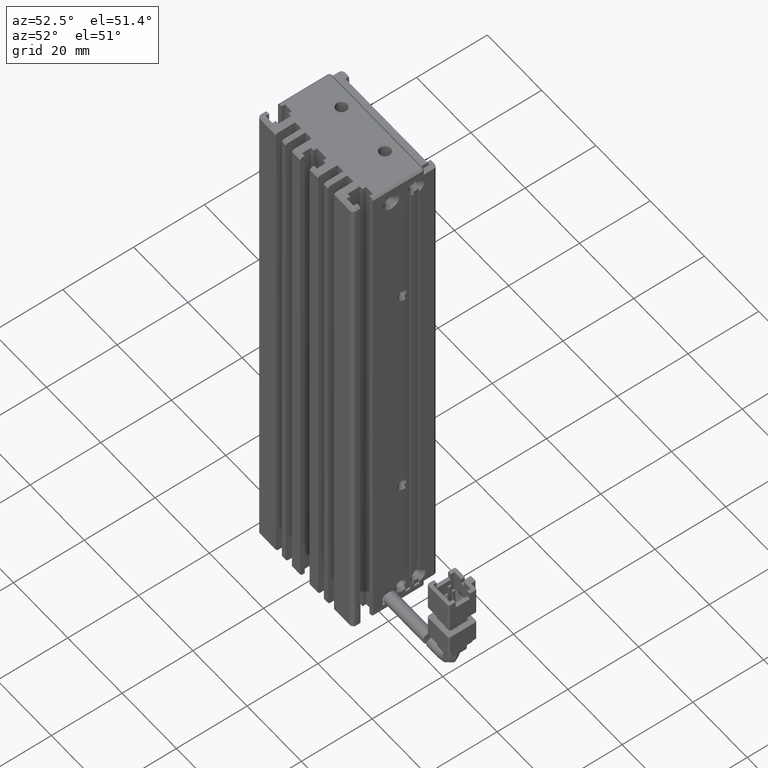
[diagram: clean part render]
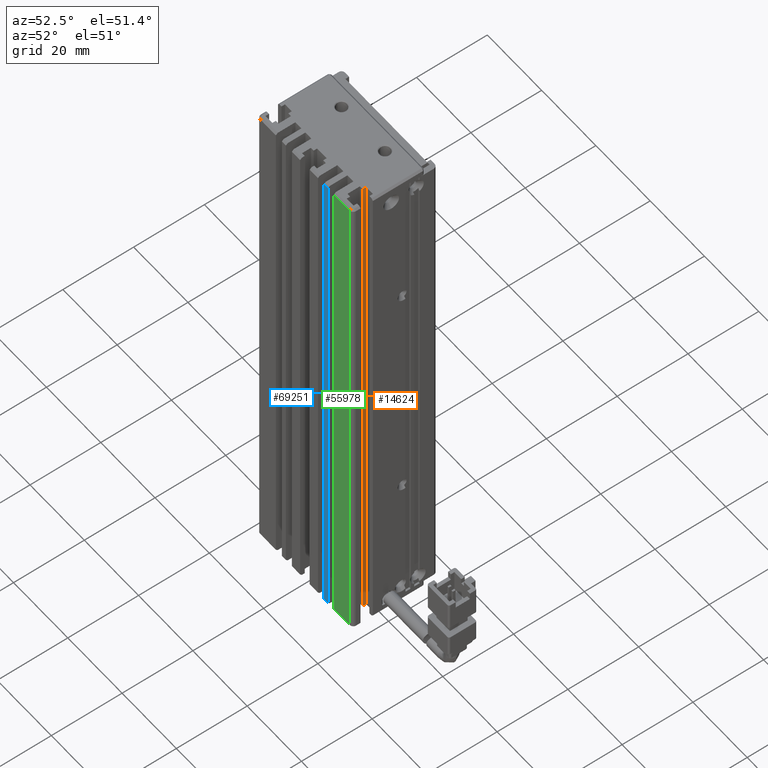
[diagram: same view with three faces highlighted in distinct colors, each labeled with its STEP entity id]
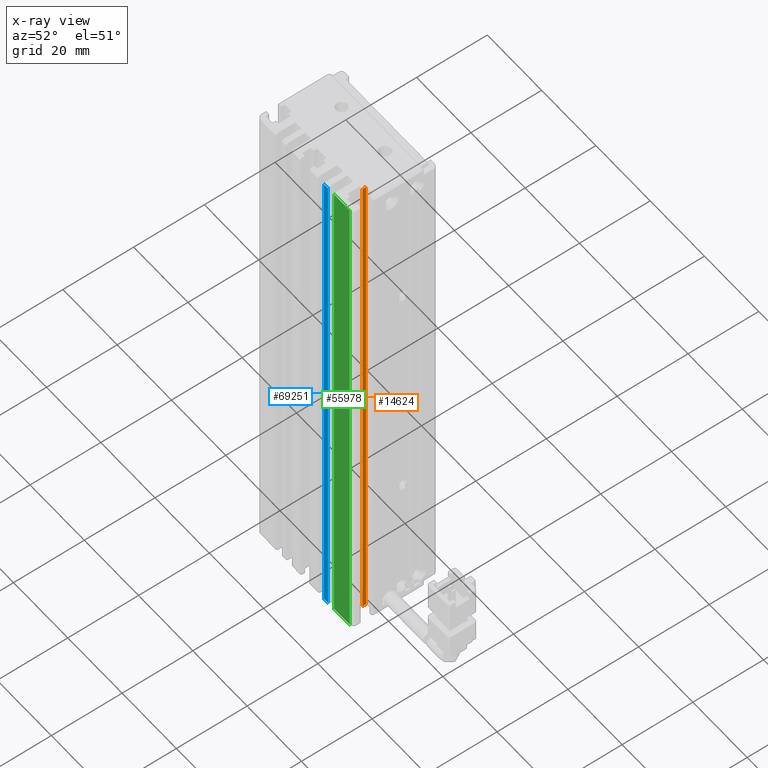
[diagram: x-ray of the same camera — body ghosted, the three highlighted faces saturated]
A machine part, auxiliary view with three faces highlighted in distinct colors.
The next image is the same camera in x-ray (body ghosted, the three faces saturated) — at least one of them is partly hidden behind the body in this view.
Their STEP definitions:

[orange] entity #14624 — the highlighted planar face has unit normal (1, -0, 0).
#1550 = LINE ( 'NONE', #7163, #4998 ) ;
#1592 = CARTESIAN_POINT ( 'NONE',  ( 54.62537974683541400, 16.79073232304837000, -190.0000000000000000 ) ) ;
#1708 = ORIENTED_EDGE ( 'NONE', *, *, #47352, .T. ) ;
#2634 = ORIENTED_EDGE ( 'NONE', *, *, #32323, .F. ) ;
#4998 = VECTOR ( 'NONE', #24405, 1000.000000000000000 ) ;
#5528 = DIRECTION ( 'NONE',  ( 8.673617379884041800E-015, 1.000000000000000000, 0.0000000000000000000 ) ) ;
#7163 = CARTESIAN_POINT ( 'NONE',  ( 54.62537974683542800, 17.79073232304837000, -40.00000000000000700 ) ) ;
#9155 = ORIENTED_EDGE ( 'NONE', *, *, #37977, .T. ) ;
#9904 = CARTESIAN_POINT ( 'NONE',  ( 54.62537974683541400, 16.79073232304837000, -40.00000000000000700 ) ) ;
#12992 = VECTOR ( 'NONE', #54279, 1000.000000000000000 ) ;
#13780 = AXIS2_PLACEMENT_3D ( 'NONE', #33520, #65691, #5528 ) ;
#14624 = ADVANCED_FACE ( 'NONE', ( #44377 ), #16539, .T. ) ;
#15406 = DIRECTION ( 'NONE',  ( 8.673617379884041800E-015, 1.000000000000000000, 0.0000000000000000000 ) ) ;
#16539 = PLANE ( 'NONE',  #13780 ) ;
#16799 = ORIENTED_EDGE ( 'NONE', *, *, #64709, .T. ) ;
#22042 = EDGE_LOOP ( 'NONE', ( #1708, #9155, #16799, #2634 ) ) ;
#23909 = VECTOR ( 'NONE', #15406, 1000.000000000000000 ) ;
#24405 = DIRECTION ( 'NONE',  ( 0.0000000000000000000, -0.0000000000000000000, -1.000000000000000000 ) ) ;
#28456 = CARTESIAN_POINT ( 'NONE',  ( 54.62537974683542800, 17.79073232304837000, -190.0000000000000000 ) ) ;
#30997 = LINE ( 'NONE', #32593, #12992 ) ;
#32323 = EDGE_CURVE ( 'NONE', #42882, #43972, #1550, .T. ) ;
#32593 = CARTESIAN_POINT ( 'NONE',  ( 54.62537974683541400, 16.79073232304836700, -40.00000000000000700 ) ) ;
#33520 = CARTESIAN_POINT ( 'NONE',  ( 54.62537974683532800, 7.083797468354319400, -40.00000000000000700 ) ) ;
#33638 = VERTEX_POINT ( 'NONE', #9904 ) ;
#37613 = LINE ( 'NONE', #70052, #23909 ) ;
#37977 = EDGE_CURVE ( 'NONE', #33638, #68475, #30997, .T. ) ;
#42705 = CARTESIAN_POINT ( 'NONE',  ( 54.62537974683542800, 17.79073232304837000, -40.00000000000000700 ) ) ;
#42882 = VERTEX_POINT ( 'NONE', #42705 ) ;
#43972 = VERTEX_POINT ( 'NONE', #28456 ) ;
#44377 = FACE_OUTER_BOUND ( 'NONE', #22042, .T. ) ;
#47352 = EDGE_CURVE ( 'NONE', #42882, #33638, #59267, .T. ) ;
#53344 = DIRECTION ( 'NONE',  ( -8.673617379884041800E-015, -1.000000000000000000, -0.0000000000000000000 ) ) ;
#54279 = DIRECTION ( 'NONE',  ( 0.0000000000000000000, -0.0000000000000000000, -1.000000000000000000 ) ) ;
#55065 = VECTOR ( 'NONE', #53344, 1000.000000000000000 ) ;
#58535 = CARTESIAN_POINT ( 'NONE',  ( 54.62537974683532800, 7.083797468354319400, -40.00000000000000700 ) ) ;
#59267 = LINE ( 'NONE', #58535, #55065 ) ;
#64709 = EDGE_CURVE ( 'NONE', #68475, #43972, #37613, .T. ) ;
#65691 = DIRECTION ( 'NONE',  ( 1.000000000000000000, -8.673617379884041800E-015, 0.0000000000000000000 ) ) ;
#68475 = VERTEX_POINT ( 'NONE', #1592 ) ;
#70052 = CARTESIAN_POINT ( 'NONE',  ( 54.62537974683532800, 7.083797468354319400, -190.0000000000000000 ) ) ;

[blue] entity #69251 — the highlighted planar face has unit normal (0, 1, 0).
#1961 = DIRECTION ( 'NONE',  ( 1.000000000000000000, 0.0000000000000000000, -0.0000000000000000000 ) ) ;
#6349 = VERTEX_POINT ( 'NONE', #58582 ) ;
#8838 = CARTESIAN_POINT ( 'NONE',  ( 40.92537974683542500, 10.99073232304837000, -40.50000000000000700 ) ) ;
#9476 = LINE ( 'NONE', #40239, #58146 ) ;
#11011 = EDGE_CURVE ( 'NONE', #58401, #45876, #50220, .T. ) ;
#11220 = EDGE_LOOP ( 'NONE', ( #13014, #68858, #49386, #23437 ) ) ;
#13014 = ORIENTED_EDGE ( 'NONE', *, *, #28754, .T. ) ;
#16185 = VECTOR ( 'NONE', #43568, 1000.000000000000000 ) ;
#18314 = CARTESIAN_POINT ( 'NONE',  ( 47.92537974683541800, 10.99073232304837000, -40.50000000000000700 ) ) ;
#19551 = LINE ( 'NONE', #49745, #16185 ) ;
#23437 = ORIENTED_EDGE ( 'NONE', *, *, #45868, .F. ) ;
#24671 = LINE ( 'NONE', #36093, #64759 ) ;
#25071 = CARTESIAN_POINT ( 'NONE',  ( 49.42537974683541800, 10.99073232304836300, -189.5000000000000000 ) ) ;
#26633 = AXIS2_PLACEMENT_3D ( 'NONE', #53545, #48343, #42850 ) ;
#28754 = EDGE_CURVE ( 'NONE', #6349, #60885, #9476, .T. ) ;
#36093 = CARTESIAN_POINT ( 'NONE',  ( 49.42537974683541800, 10.99073232304835700, -40.00000000000000700 ) ) ;
#36437 = PLANE ( 'NONE',  #26633 ) ;
#38865 = EDGE_CURVE ( 'NONE', #60885, #45876, #24671, .T. ) ;
#40239 = CARTESIAN_POINT ( 'NONE',  ( 40.92537974683542500, 10.99073232304835900, -189.5000000000000000 ) ) ;
#42037 = DIRECTION ( 'NONE',  ( 0.0000000000000000000, 0.0000000000000000000, 1.000000000000000000 ) ) ;
#42850 = DIRECTION ( 'NONE',  ( 0.0000000000000000000, -0.0000000000000000000, 1.000000000000000000 ) ) ;
#43568 = DIRECTION ( 'NONE',  ( 0.0000000000000000000, 0.0000000000000000000, 1.000000000000000000 ) ) ;
#45868 = EDGE_CURVE ( 'NONE', #6349, #58401, #19551, .T. ) ;
#45876 = VERTEX_POINT ( 'NONE', #65231 ) ;
#48343 = DIRECTION ( 'NONE',  ( 0.0000000000000000000, 1.000000000000000000, 0.0000000000000000000 ) ) ;
#49386 = ORIENTED_EDGE ( 'NONE', *, *, #11011, .F. ) ;
#49745 = CARTESIAN_POINT ( 'NONE',  ( 47.92537974683541800, 10.99073232304837000, -40.00000000000000700 ) ) ;
#50220 = LINE ( 'NONE', #8838, #61267 ) ;
#53009 = DIRECTION ( 'NONE',  ( 1.000000000000000000, 0.0000000000000000000, 0.0000000000000000000 ) ) ;
#53545 = CARTESIAN_POINT ( 'NONE',  ( 40.92537974683542500, 10.99073232304837000, -40.00000000000000700 ) ) ;
#58146 = VECTOR ( 'NONE', #1961, 1000.000000000000000 ) ;
#58401 = VERTEX_POINT ( 'NONE', #18314 ) ;
#58582 = CARTESIAN_POINT ( 'NONE',  ( 47.92537974683541800, 10.99073232304837000, -189.4999999999999700 ) ) ;
#60885 = VERTEX_POINT ( 'NONE', #25071 ) ;
#61267 = VECTOR ( 'NONE', #53009, 1000.000000000000000 ) ;
#64759 = VECTOR ( 'NONE', #42037, 1000.000000000000000 ) ;
#65231 = CARTESIAN_POINT ( 'NONE',  ( 49.42537974683541800, 10.99073232304836300, -40.50000000000002100 ) ) ;
#66750 = FACE_OUTER_BOUND ( 'NONE', #11220, .T. ) ;
#68858 = ORIENTED_EDGE ( 'NONE', *, *, #38865, .T. ) ;
#69251 = ADVANCED_FACE ( 'NONE', ( #66750 ), #36437, .F. ) ;

[green] entity #55978 — the highlighted planar face has unit normal (-0, 1, 0).
#4890 = CARTESIAN_POINT ( 'NONE',  ( 51.62537974683542100, 10.99073232304837000, -40.50000000000000700 ) ) ;
#14690 = EDGE_LOOP ( 'NONE', ( #37556, #59555, #57711, #46605 ) ) ;
#16091 = DIRECTION ( 'NONE',  ( 1.000000000000000000, 3.738628180984490700E-016, 3.738628180984490700E-016 ) ) ;
#16472 = EDGE_CURVE ( 'NONE', #41937, #68837, #45947, .T. ) ;
#16750 = DIRECTION ( 'NONE',  ( 0.0000000000000000000, 0.0000000000000000000, 1.000000000000000000 ) ) ;
#18751 = VERTEX_POINT ( 'NONE', #4890 ) ;
#22407 = AXIS2_PLACEMENT_3D ( 'NONE', #40060, #39135, #61463 ) ;
#23296 = PLANE ( 'NONE',  #22407 ) ;
#23452 = CARTESIAN_POINT ( 'NONE',  ( 57.42537974683542500, 10.99073232304837500, -40.00000000000000700 ) ) ;
#24585 = VECTOR ( 'NONE', #66148, 1000.000000000000000 ) ;
#29923 = CARTESIAN_POINT ( 'NONE',  ( 57.42537974683543200, 10.99073232304200700, -40.49999999999990100 ) ) ;
#31239 = CARTESIAN_POINT ( 'NONE',  ( 51.62537974683542100, 10.99073232304835200, -189.5000000000000000 ) ) ;
#37141 = VERTEX_POINT ( 'NONE', #29923 ) ;
#37556 = ORIENTED_EDGE ( 'NONE', *, *, #16472, .T. ) ;
#39135 = DIRECTION ( 'NONE',  ( -7.477256361968982400E-016, 1.000000000000000000, 0.0000000000000000000 ) ) ;
#39240 = CARTESIAN_POINT ( 'NONE',  ( 40.92537974683542500, 10.99073232304836800, -40.50000000000000700 ) ) ;
#40060 = CARTESIAN_POINT ( 'NONE',  ( 40.92537974683542500, 10.99073232304836300, -40.00000000000000700 ) ) ;
#40430 = CARTESIAN_POINT ( 'NONE',  ( 51.62537974683541400, 10.99073232304837000, -40.00000000000000700 ) ) ;
#41937 = VERTEX_POINT ( 'NONE', #31239 ) ;
#42189 = VECTOR ( 'NONE', #16750, 1000.000000000000000 ) ;
#42672 = EDGE_CURVE ( 'NONE', #41937, #18751, #58293, .T. ) ;
#45080 = VECTOR ( 'NONE', #16091, 1000.000000000000000 ) ;
#45947 = LINE ( 'NONE', #70732, #45080 ) ;
#46605 = ORIENTED_EDGE ( 'NONE', *, *, #42672, .F. ) ;
#50594 = FACE_OUTER_BOUND ( 'NONE', #14690, .T. ) ;
#52077 = LINE ( 'NONE', #23452, #65789 ) ;
#55978 = ADVANCED_FACE ( 'NONE', ( #50594 ), #23296, .F. ) ;
#56558 = EDGE_CURVE ( 'NONE', #37141, #68837, #52077, .T. ) ;
#57711 = ORIENTED_EDGE ( 'NONE', *, *, #66933, .F. ) ;
#58293 = LINE ( 'NONE', #40430, #42189 ) ;
#59555 = ORIENTED_EDGE ( 'NONE', *, *, #56558, .F. ) ;
#61463 = DIRECTION ( 'NONE',  ( -1.000000000000000000, -7.477256361968982400E-016, 0.0000000000000000000 ) ) ;
#63023 = LINE ( 'NONE', #39240, #24585 ) ;
#65789 = VECTOR ( 'NONE', #67113, 1000.000000000000000 ) ;
#66148 = DIRECTION ( 'NONE',  ( 1.000000000000000000, 3.738628180984490700E-016, -3.738628180984490700E-016 ) ) ;
#66933 = EDGE_CURVE ( 'NONE', #18751, #37141, #63023, .T. ) ;
#67113 = DIRECTION ( 'NONE',  ( -0.0000000000000000000, -0.0000000000000000000, -1.000000000000000000 ) ) ;
#68837 = VERTEX_POINT ( 'NONE', #69420 ) ;
#69420 = CARTESIAN_POINT ( 'NONE',  ( 57.42537974683542500, 10.99073232304568000, -189.5000000000001100 ) ) ;
#70732 = CARTESIAN_POINT ( 'NONE',  ( 40.92537974683542500, 10.99073232304834100, -189.5000000000000000 ) ) ;